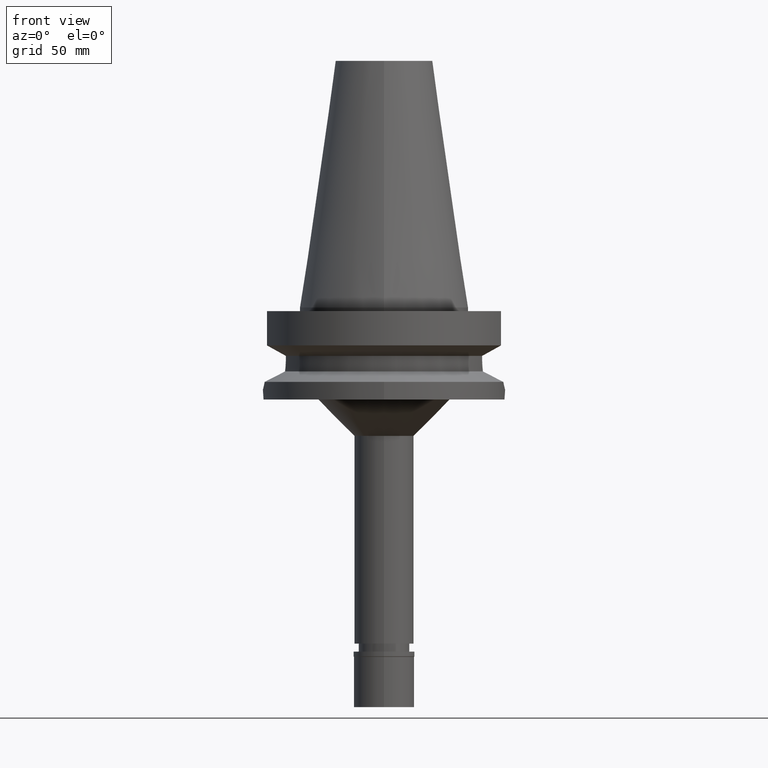
[diagram: clean part render]
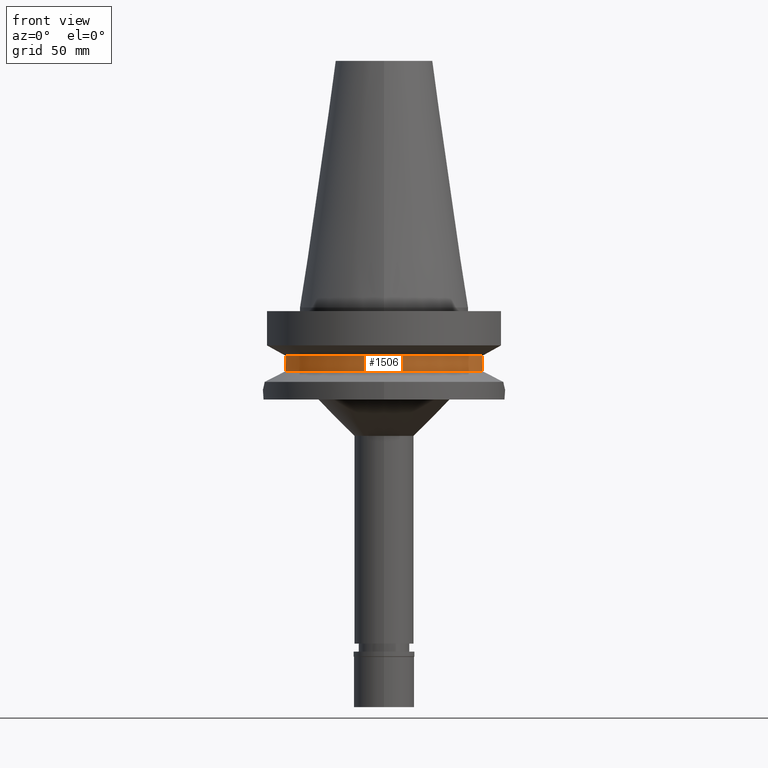
[diagram: same view with one face highlighted and labeled with its STEP entity id]
A machine part, front view. The second image highlights one B-rep face of the part: STEP entity #1506.
In plain terms, the highlighted cylindrical surface (partial cylindrical patch) has radius 42.5 mm, axis along (0, 0, -1).
Its self-contained STEP definition (entity closure, byte-faithful):
#8 = CARTESIAN_POINT ( 'NONE',  ( 40.59544857123436401, -12.58031941217379668, -23.76894563305584995 ) ) ;
#46 = CARTESIAN_POINT ( 'NONE',  ( -40.85052569294000335, -11.72538061688000077, -26.40718074535000426 ) ) ;
#51 = EDGE_CURVE ( 'NONE', #1702, #2284, #2074, .T. ) ;
#54 = CARTESIAN_POINT ( 'NONE',  ( -40.51083297203000200, -12.84999657244999938, -19.99284555869999735 ) ) ;
#102 = CARTESIAN_POINT ( 'NONE',  ( -40.51083188481999287, -12.84999999999998366, -22.03311098683157709 ) ) ;
#150 = VERTEX_POINT ( 'NONE', #2246 ) ;
#193 = CARTESIAN_POINT ( 'NONE',  ( 40.58662774857589994, -12.60877356363314306, -23.62931612666511327 ) ) ;
#353 = CARTESIAN_POINT ( 'NONE',  ( -40.79434747815605533, -11.92110216156726743, -25.97065217280587035 ) ) ;
#415 = CARTESIAN_POINT ( 'NONE',  ( 40.51083188482000708, -12.85000000000000142, -21.59155125953240173 ) ) ;
#431 = CARTESIAN_POINT ( 'NONE',  ( 40.54025378189582796, -12.75731467218757409, -22.70686882179159127 ) ) ;
#453 = EDGE_CURVE ( 'NONE', #1702, #1699, #1589, .T. ) ;
#549 = CARTESIAN_POINT ( 'NONE',  ( 40.51083188481999997, -12.84999999999999964, -21.14999999999999858 ) ) ;
#685 = CARTESIAN_POINT ( 'NONE',  ( 40.54944812473202376, -12.72805978472144339, -22.93052269426958034 ) ) ;
#724 = ORIENTED_EDGE ( 'NONE', *, *, #1160, .F. ) ;
#748 = DIRECTION ( 'NONE',  ( 0.0000000000000000000, 0.0000000000000000000, -1.000000000000000000 ) ) ;
#789 = CARTESIAN_POINT ( 'NONE',  ( -40.60257358959960783, -12.55730255709285004, -23.87715530987610535 ) ) ;
#814 = CARTESIAN_POINT ( 'NONE',  ( -40.85052569294000335, -11.72538061688000077, -26.40718074535000426 ) ) ;
#824 = CARTESIAN_POINT ( 'NONE',  ( -40.66327821819965749, -12.35976375020078244, -24.67241565226416000 ) ) ;
#941 = EDGE_CURVE ( 'NONE', #2287, #150, #2092, .T. ) ;
#953 = CYLINDRICAL_SURFACE ( 'NONE', #1720, 42.50000000000000000 ) ;
#959 = EDGE_CURVE ( 'NONE', #1699, #150, #1967, .T. ) ;
#983 = CARTESIAN_POINT ( 'NONE',  ( 40.59737061725673613, -12.57411364518322827, -23.79856269427695281 ) ) ;
#989 = DIRECTION ( 'NONE',  ( -9.395584592290728068E-07, 2.962048808702914309E-06, 0.9999999999951717511 ) ) ;
#1074 = CARTESIAN_POINT ( 'NONE',  ( -40.60093031198017854, -12.56261288210636451, -23.85260464680346360 ) ) ;
#1118 = DIRECTION ( 'NONE',  ( -9.390312052565791328E-07, -2.960386588420936106E-06, -0.9999999999951771912 ) ) ;
#1160 = EDGE_CURVE ( 'NONE', #1597, #2284, #1959, .T. ) ;
#1181 = DIRECTION ( 'NONE',  ( 0.0000000000000000000, 0.0000000000000000000, -1.000000000000000000 ) ) ;
#1192 = EDGE_LOOP ( 'NONE', ( #2332, #1321, #1221, #2377, #1338, #724 ) ) ;
#1221 = ORIENTED_EDGE ( 'NONE', *, *, #959, .F. ) ;
#1237 = CARTESIAN_POINT ( 'NONE',  ( 0.0000000000000000000, 1.006319759053999930E-14, -19.99281925464999787 ) ) ;
#1265 = DIRECTION ( 'NONE',  ( 0.9531960443486575674, -0.3023529411764863672, 0.0000000000000000000 ) ) ;
#1306 = CARTESIAN_POINT ( 'NONE',  ( -40.60613923872061548, -12.54577469982790916, -23.92970515985308566 ) ) ;
#1321 = ORIENTED_EDGE ( 'NONE', *, *, #941, .T. ) ;
#1338 = ORIENTED_EDGE ( 'NONE', *, *, #51, .T. ) ;
#1365 = B_SPLINE_CURVE_WITH_KNOTS ( 'NONE', 3,
 ( #46, #353, #2303, #2957, #824, #1786, #2062, #3028, #1306, #789, #1074, #1515, #102, #2486 ),
 .UNSPECIFIED., .F., .F.,
 ( 4, 2, 2, 1, 1, 2, 2, 4 ),
 ( 0.0000000000000000000, 0.2500000000000067724, 0.3750000000000099920, 0.4375000000000106026, 0.4687500000000101585, 0.4843750000000098810, 0.5000000000000096589, 1.000000000000000000 ),
 .UNSPECIFIED. ) ;
#1474 = CARTESIAN_POINT ( 'NONE',  ( -40.51083188481999997, -12.84999999999999964, -21.14999999999999858 ) ) ;
#1506 = ADVANCED_FACE ( 'NONE', ( #2884 ), #953, .T. ) ;
#1515 = CARTESIAN_POINT ( 'NONE',  ( -40.54025177940290092, -12.75862267496949620, -22.93154239035596476 ) ) ;
#1589 = LINE ( 'NONE', #2779, #2052 ) ;
#1597 = VERTEX_POINT ( 'NONE', #1474 ) ;
#1667 = CARTESIAN_POINT ( 'NONE',  ( 0.0000000000000000000, 2.629194213088999901E-14, 114.6899999999999977 ) ) ;
#1697 = DIRECTION ( 'NONE',  ( 0.0000000000000000000, -1.000000000000000000, 0.0000000000000000000 ) ) ;
#1699 = VERTEX_POINT ( 'NONE', #549 ) ;
#1702 = VERTEX_POINT ( 'NONE', #2994 ) ;
#1706 = CARTESIAN_POINT ( 'NONE',  ( 40.73816962964880872, -12.11682243018209704, -25.53412644635514539 ) ) ;
#1720 = AXIS2_PLACEMENT_3D ( 'NONE', #1667, #1181, #1697 ) ;
#1735 = EDGE_CURVE ( 'NONE', #2287, #1597, #1365, .T. ) ;
#1786 = CARTESIAN_POINT ( 'NONE',  ( -40.63720115042401915, -12.44498656809117598, -24.35265160719256627 ) ) ;
#1959 = LINE ( 'NONE', #2179, #2133 ) ;
#1967 = B_SPLINE_CURVE_WITH_KNOTS ( 'NONE', 3,
 ( #2132, #415, #3102, #431, #685, #2376, #2856, #193, #2915, #8, #983, #3133, #1706, #2879 ),
 .UNSPECIFIED., .F., .F.,
 ( 4, 2, 2, 1, 1, 2, 2, 4 ),
 ( 0.0000000000000000000, 0.2500000000000069944, 0.3750000000000094924, 0.4375000000000108802, 0.4687500000000116018, 0.4843750000000118794, 0.5000000000000121014, 1.000000000000000000 ),
 .UNSPECIFIED. ) ;
#2052 = VECTOR ( 'NONE', #1118, 1000.000000000000114 ) ;
#2062 = CARTESIAN_POINT ( 'NONE',  ( -40.62483164125755053, -12.48524007482440368, -24.19334343400565146 ) ) ;
#2074 = CIRCLE ( 'NONE', #2274, 42.50000000000002132 ) ;
#2092 = CIRCLE ( 'NONE', #2436, 42.50000000000000000 ) ;
#2108 = DIRECTION ( 'NONE',  ( 0.0000000000000000000, -1.000000000000000000, 0.0000000000000000000 ) ) ;
#2132 = CARTESIAN_POINT ( 'NONE',  ( 40.51083188481999997, -12.84999999999999964, -21.14999999999999858 ) ) ;
#2133 = VECTOR ( 'NONE', #989, 1000.000000000000000 ) ;
#2179 = CARTESIAN_POINT ( 'NONE',  ( -40.51083188481999997, -12.84999999999999964, -21.14999999999999858 ) ) ;
#2246 = CARTESIAN_POINT ( 'NONE',  ( 40.85052569294000335, -11.72538061688000077, -26.40718074535000426 ) ) ;
#2274 = AXIS2_PLACEMENT_3D ( 'NONE', #1237, #748, #1265 ) ;
#2284 = VERTEX_POINT ( 'NONE', #54 ) ;
#2287 = VERTEX_POINT ( 'NONE', #814 ) ;
#2303 = CARTESIAN_POINT ( 'NONE',  ( -40.74530552706649189, -12.08734373582207944, -25.53456320665380730 ) ) ;
#2332 = ORIENTED_EDGE ( 'NONE', *, *, #1735, .F. ) ;
#2376 = CARTESIAN_POINT ( 'NONE',  ( 40.56599794183718188, -12.67508828619821415, -23.26599945041198580 ) ) ;
#2377 = ORIENTED_EDGE ( 'NONE', *, *, #453, .F. ) ;
#2436 = AXIS2_PLACEMENT_3D ( 'NONE', #2587, #3092, #2108 ) ;
#2486 = CARTESIAN_POINT ( 'NONE',  ( -40.51083188481999997, -12.84999999999999964, -21.14999999999999858 ) ) ;
#2587 = CARTESIAN_POINT ( 'NONE',  ( 0.0000000000000000000, 0.0000000000000000000, -26.40718074535000426 ) ) ;
#2779 = CARTESIAN_POINT ( 'NONE',  ( 40.51083297142000106, -12.84999657437999865, -19.99284554394000324 ) ) ;
#2856 = CARTESIAN_POINT ( 'NONE',  ( 40.57496242610246640, -12.64633064307897037, -23.43373649620420807 ) ) ;
#2879 = CARTESIAN_POINT ( 'NONE',  ( 40.85052569294000335, -11.72538061688000077, -26.40718074535000426 ) ) ;
#2884 = FACE_OUTER_BOUND ( 'NONE', #1192, .T. ) ;
#2915 = CARTESIAN_POINT ( 'NONE',  ( 40.59188576338534915, -12.59181613885845330, -23.71309950380452847 ) ) ;
#2957 = CARTESIAN_POINT ( 'NONE',  ( -40.68244699597367031, -12.29665972421070386, -24.88712495138160463 ) ) ;
#2994 = CARTESIAN_POINT ( 'NONE',  ( 40.51083188481999997, -12.84999999999999964, -19.99281925464999787 ) ) ;
#3028 = CARTESIAN_POINT ( 'NONE',  ( -40.61157134049236106, -12.52820429568858884, -24.00861743071703458 ) ) ;
#3092 = DIRECTION ( 'NONE',  ( 0.0000000000000000000, 0.0000000000000000000, 1.000000000000000000 ) ) ;
#3102 = CARTESIAN_POINT ( 'NONE',  ( 40.51818735908895519, -12.82722126770211091, -22.03688626290332309 ) ) ;
#3133 = CARTESIAN_POINT ( 'NONE',  ( 40.65436025735130698, -12.39001373507904624, -24.66363152923814894 ) ) ;